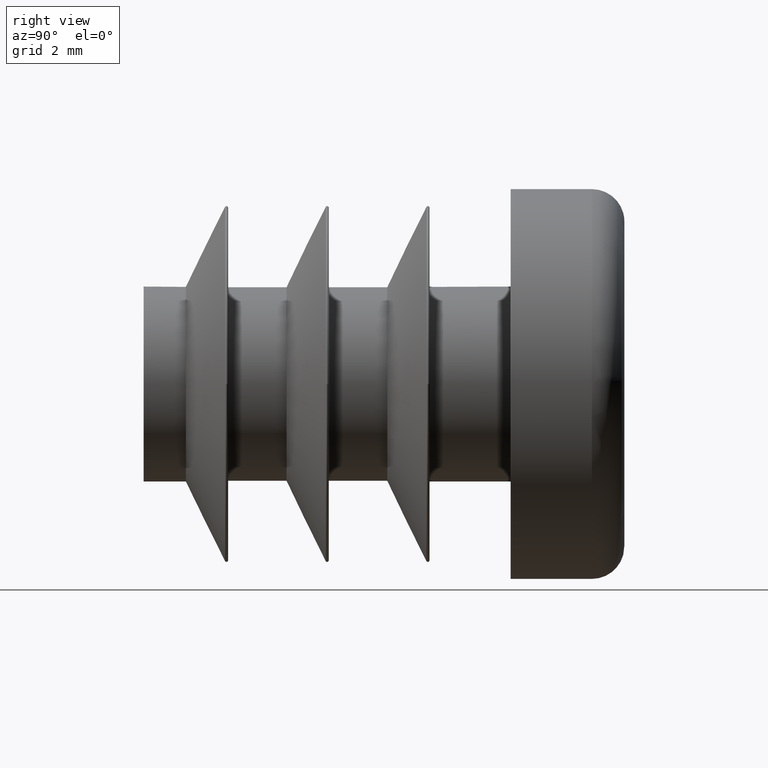
[diagram: clean part render]
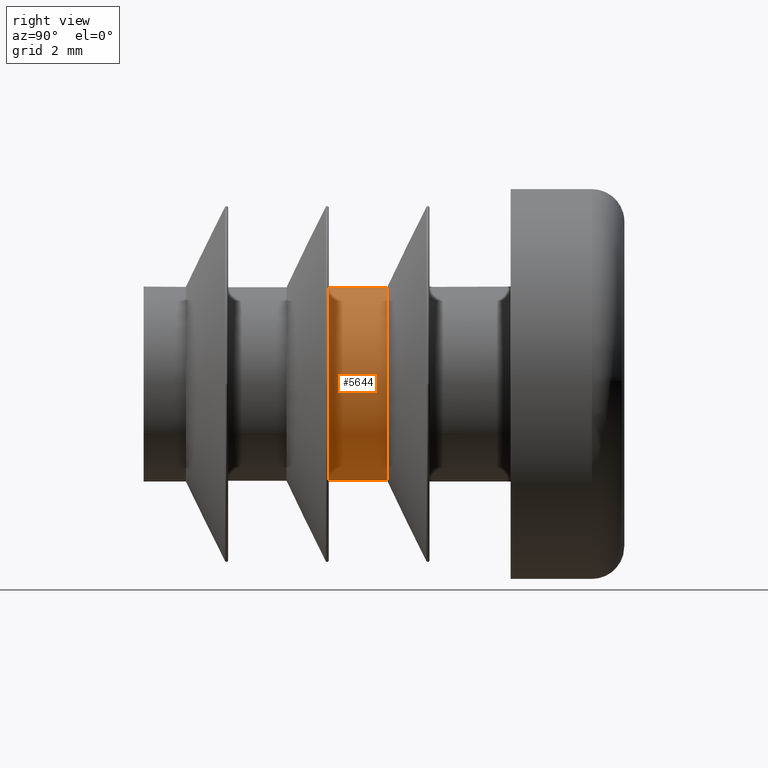
[diagram: same view with one face highlighted and labeled with its STEP entity id]
A machine part, right view. The second image highlights one B-rep face of the part: STEP entity #5644.
In plain terms, the highlighted cylindrical surface (bore or boss wall) has radius 3 mm, axis along (-0, -1, -0).
Its self-contained STEP definition (entity closure, byte-faithful):
#300 = AXIS2_PLACEMENT_3D ( 'NONE', #2207, #628, #9661 ) ;
#358 = DIRECTION ( 'NONE',  ( -1.047444401652940007E-14, 1.000000000000000000, 0.000000000000000000 ) ) ;
#565 = VERTEX_POINT ( 'NONE', #9766 ) ;
#628 = DIRECTION ( 'NONE',  ( 1.047444401652940007E-14, -1.000000000000000000, -0.000000000000000000 ) ) ;
#1252 = EDGE_LOOP ( 'NONE', ( #9030 ) ) ;
#2207 = CARTESIAN_POINT ( 'NONE',  ( 0.000000000000000000, 5.700000000000013500, 0.000000000000000000 ) ) ;
#2571 = DIRECTION ( 'NONE',  ( -1.000000000000000000, -1.040834085586082679E-14, 0.000000000000000000 ) ) ;
#2655 = FACE_OUTER_BOUND ( 'NONE', #3440, .T. ) ;
#3010 = FACE_OUTER_BOUND ( 'NONE', #1252, .T. ) ;
#3042 = VERTEX_POINT ( 'NONE', #7710 ) ;
#3440 = EDGE_LOOP ( 'NONE', ( #9744 ) ) ;
#5092 = EDGE_CURVE ( 'NONE', #565, #565, #9559, .T. ) ;
#5194 = AXIS2_PLACEMENT_3D ( 'NONE', #7137, #358, #2571 ) ;
#5644 = ADVANCED_FACE ( 'NONE', ( #2655, #3010 ), #9439, .T. ) ;
#5665 = DIRECTION ( 'NONE',  ( 0.000000000000000000, 0.000000000000000000, -1.000000000000000000 ) ) ;
#5705 = CIRCLE ( 'NONE', #300, 3.000000000000004441 ) ;
#6484 = DIRECTION ( 'NONE',  ( -0.000000000000000000, -1.000000000000000000, -0.000000000000000000 ) ) ;
#7137 = CARTESIAN_POINT ( 'NONE',  ( -7.855833012397075924E-14, 7.500000000000024869, 0.000000000000000000 ) ) ;
#7259 = CARTESIAN_POINT ( 'NONE',  ( 0.000000000000000000, 11.29999999999999716, 0.000000000000000000 ) ) ;
#7710 = CARTESIAN_POINT ( 'NONE',  ( -3.000000000000004441, 5.699999999999982414, 0.000000000000000000 ) ) ;
#8577 = AXIS2_PLACEMENT_3D ( 'NONE', #7259, #6484, #5665 ) ;
#8970 = EDGE_CURVE ( 'NONE', #3042, #3042, #5705, .T. ) ;
#9030 = ORIENTED_EDGE ( 'NONE', *, *, #5092, .F. ) ;
#9439 = CYLINDRICAL_SURFACE ( 'NONE', #8577, 3.000000000000004441 ) ;
#9559 = CIRCLE ( 'NONE', #5194, 3.000000000000004441 ) ;
#9661 = DIRECTION ( 'NONE',  ( -1.000000000000000000, -1.040834085586082679E-14, 0.000000000000000000 ) ) ;
#9744 = ORIENTED_EDGE ( 'NONE', *, *, #8970, .F. ) ;
#9766 = CARTESIAN_POINT ( 'NONE',  ( -3.000000000000083045, 7.499999999999993783, 0.000000000000000000 ) ) ;